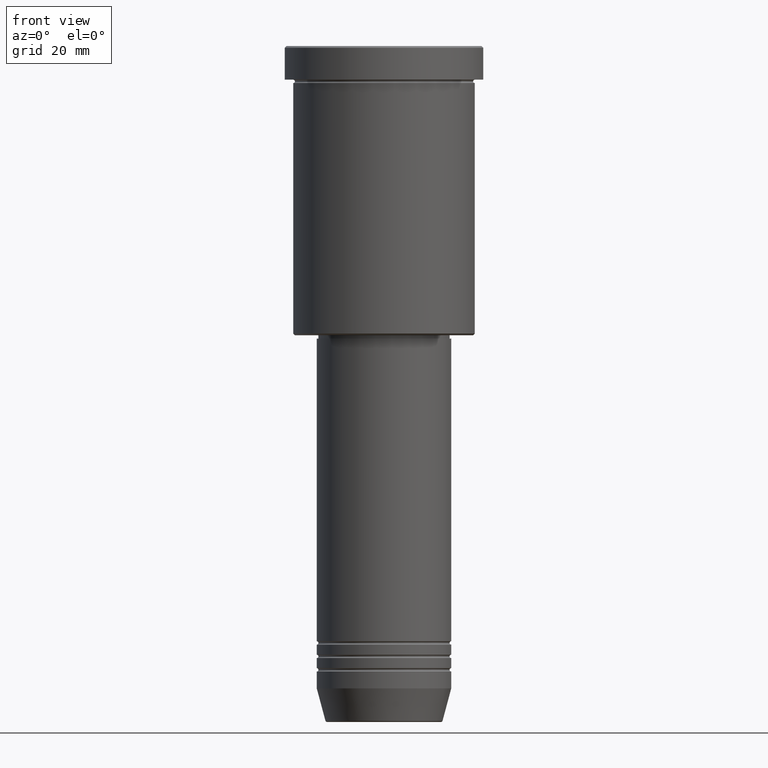
[diagram: clean part render]
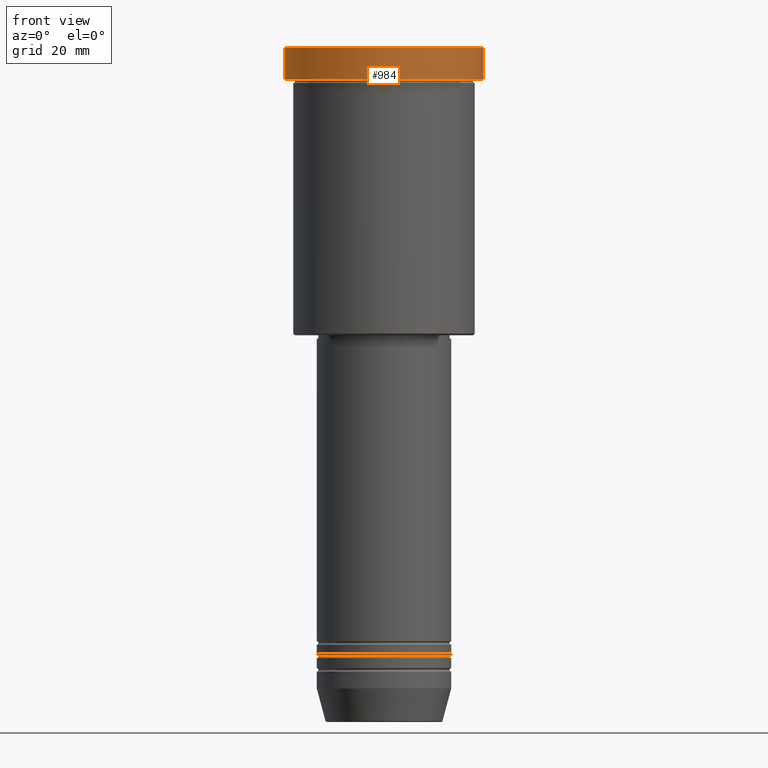
[diagram: same view with one face highlighted and labeled with its STEP entity id]
A machine part, front view. The second image highlights one B-rep face of the part: STEP entity #984.
In plain terms, the highlighted cylindrical surface (partial cylindrical patch) has radius 29.5 mm, axis along (-0, -0, 1).
Its self-contained STEP definition (entity closure, byte-faithful):
#6 = EDGE_CURVE ( 'NONE', #202, #597, #836, .T. ) ;
#25 = CARTESIAN_POINT ( 'NONE',  ( -29.50000000000000000, 3.612708057484691604E-15, 0.000000000000000000 ) ) ;
#38 = CARTESIAN_POINT ( 'NONE',  ( 0.000000000000000000, 0.000000000000000000, -0.4999999999999726885 ) ) ;
#101 = VERTEX_POINT ( 'NONE', #1112 ) ;
#121 = ORIENTED_EDGE ( 'NONE', *, *, #6, .T. ) ;
#137 = AXIS2_PLACEMENT_3D ( 'NONE', #1017, #872, #954 ) ;
#143 = CYLINDRICAL_SURFACE ( 'NONE', #137, 29.50000000000000000 ) ;
#182 = ORIENTED_EDGE ( 'NONE', *, *, #640, .F. ) ;
#202 = VERTEX_POINT ( 'NONE', #1140 ) ;
#347 = AXIS2_PLACEMENT_3D ( 'NONE', #38, #414, #775 ) ;
#379 = DIRECTION ( 'NONE',  ( -0.000000000000000000, -0.000000000000000000, 1.000000000000000000 ) ) ;
#395 = DIRECTION ( 'NONE',  ( -0.000000000000000000, -0.000000000000000000, 1.000000000000000000 ) ) ;
#413 = FACE_OUTER_BOUND ( 'NONE', #932, .T. ) ;
#414 = DIRECTION ( 'NONE',  ( 0.000000000000000000, 0.000000000000000000, -1.000000000000000000 ) ) ;
#422 = CIRCLE ( 'NONE', #347, 29.50000000000000000 ) ;
#440 = CARTESIAN_POINT ( 'NONE',  ( -29.50000000000000000, 3.612708057484691604E-15, -0.4999999999999726885 ) ) ;
#467 = VERTEX_POINT ( 'NONE', #440 ) ;
#538 = DIRECTION ( 'NONE',  ( 1.000000000000000000, 0.000000000000000000, 0.000000000000000000 ) ) ;
#551 = CARTESIAN_POINT ( 'NONE',  ( 0.000000000000000000, 0.000000000000000000, -9.999999999999992895 ) ) ;
#597 = VERTEX_POINT ( 'NONE', #946 ) ;
#632 = DIRECTION ( 'NONE',  ( -0.000000000000000000, -0.000000000000000000, 1.000000000000000000 ) ) ;
#640 = EDGE_CURVE ( 'NONE', #202, #467, #847, .T. ) ;
#722 = LINE ( 'NONE', #1074, #957 ) ;
#775 = DIRECTION ( 'NONE',  ( 1.000000000000000000, 0.000000000000000000, 0.000000000000000000 ) ) ;
#788 = EDGE_CURVE ( 'NONE', #101, #467, #422, .T. ) ;
#836 = CIRCLE ( 'NONE', #878, 29.50000000000000000 ) ;
#842 = EDGE_CURVE ( 'NONE', #597, #101, #722, .T. ) ;
#847 = LINE ( 'NONE', #25, #860 ) ;
#860 = VECTOR ( 'NONE', #395, 1000.000000000000000 ) ;
#872 = DIRECTION ( 'NONE',  ( -0.000000000000000000, -0.000000000000000000, 1.000000000000000000 ) ) ;
#878 = AXIS2_PLACEMENT_3D ( 'NONE', #551, #379, #538 ) ;
#932 = EDGE_LOOP ( 'NONE', ( #182, #121, #1159, #1171 ) ) ;
#946 = CARTESIAN_POINT ( 'NONE',  ( 29.50000000000000000, 0.000000000000000000, -9.999999999999992895 ) ) ;
#954 = DIRECTION ( 'NONE',  ( 1.000000000000000000, 0.000000000000000000, 0.000000000000000000 ) ) ;
#957 = VECTOR ( 'NONE', #632, 1000.000000000000000 ) ;
#984 = ADVANCED_FACE ( 'NONE', ( #413 ), #143, .T. ) ;
#1017 = CARTESIAN_POINT ( 'NONE',  ( 0.000000000000000000, 0.000000000000000000, 0.000000000000000000 ) ) ;
#1074 = CARTESIAN_POINT ( 'NONE',  ( 29.50000000000000000, 0.000000000000000000, 0.000000000000000000 ) ) ;
#1112 = CARTESIAN_POINT ( 'NONE',  ( 29.50000000000000000, 0.000000000000000000, -0.4999999999999726885 ) ) ;
#1140 = CARTESIAN_POINT ( 'NONE',  ( -29.50000000000000000, 3.612708057484691604E-15, -9.999999999999992895 ) ) ;
#1159 = ORIENTED_EDGE ( 'NONE', *, *, #842, .T. ) ;
#1171 = ORIENTED_EDGE ( 'NONE', *, *, #788, .T. ) ;